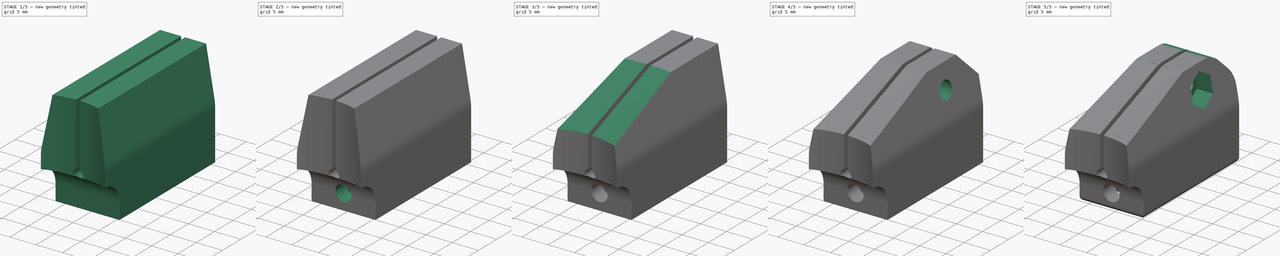
[diagram: build sequence overview — one tinted view per stage of 5, left to right]
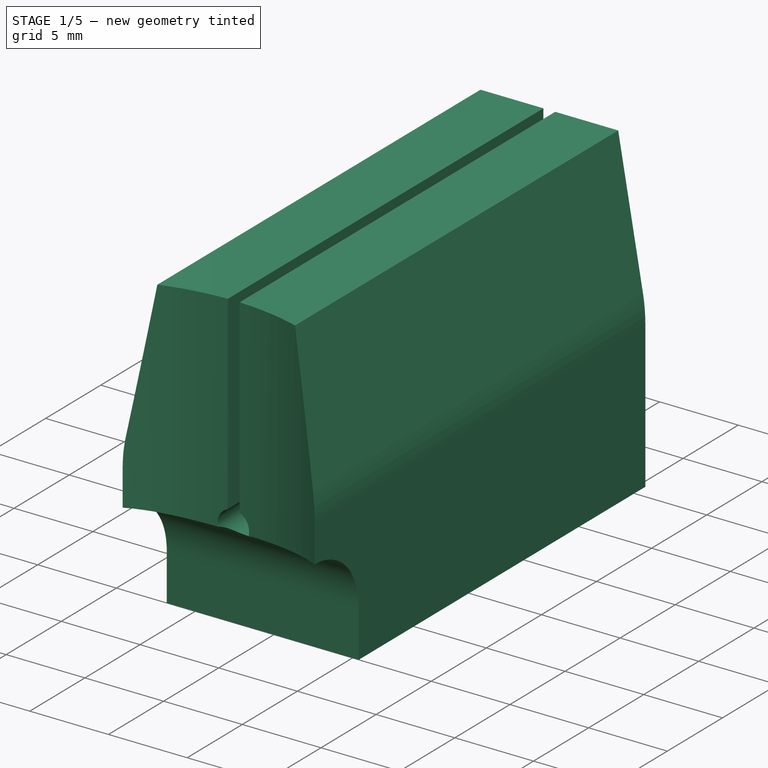
[diagram: stage 1 of 5 — iso view after this stage's code; geometry added in this stage tinted green]
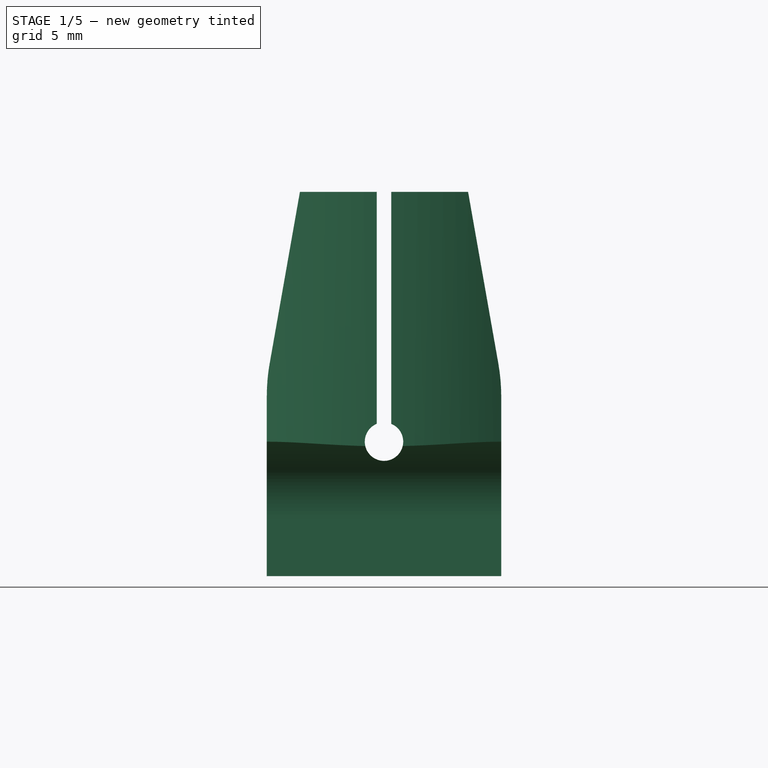
[diagram: stage 1 of 5 — front view after this stage's code; geometry added in this stage tinted green]
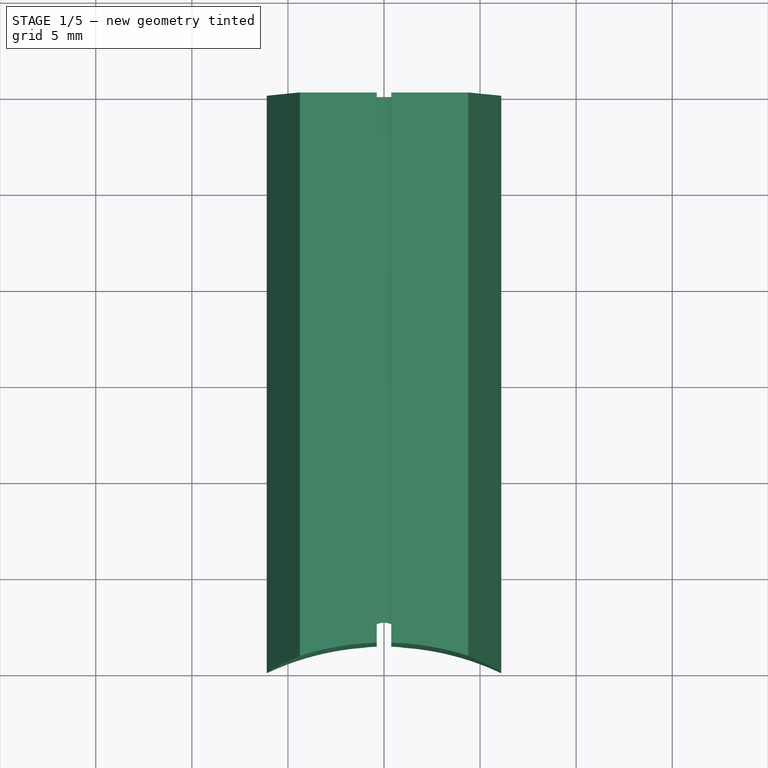
[diagram: stage 1 of 5 — top view after this stage's code; geometry added in this stage tinted green]
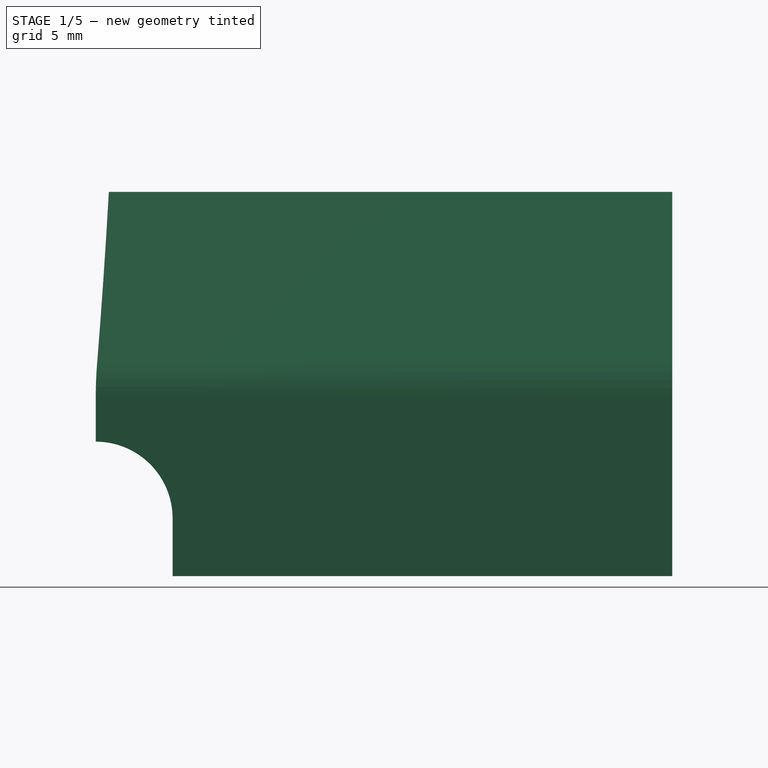
[diagram: stage 1 of 5 — right view after this stage's code; geometry added in this stage tinted green]
FCSTD DOCUMENT  (FreeCAD 0.16RUnknown)
Label: joint-base-i.012
License: All rights reserved
LicenseURL: http://en.wikipedia.org/wiki/All_rights_reserved
objects: Sketcher::SketchObject×10, Part::Fillet×6, PartDesign::Pocket×6, Part::Extrusion×4, Part::Cut×3, Part::Chamfer×2
note: 37 computed .brp shape members not serialized (recipe doc carries the construction recipe); baked Part::Feature solids carry a one-line shape summary decoded from their .brp

FEATURE [Sketcher::SketchObject] Sketch
  Placement = pos=(0,0,0) rot=(-1,0,0;4.71239rad)
  sketch-geometry (13):
    g0: Circle [constr] CenterX=0 CenterY=0 CenterZ=0 NormalX=0 NormalY=0 NormalZ=1 Radius=4.1
    g1: LineSegment [constr] StartX=4.1 StartY=0 StartZ=0 EndX=6.1 EndY=0 EndZ=0
    g2: ArcOfCircle CenterX=0 CenterY=0 CenterZ=0 NormalX=0 NormalY=0 NormalZ=1 Radius=1 StartAngle=1.95519 EndAngle=7.46958
    g3: LineSegment StartX=-6.1 StartY=-7 StartZ=0 EndX=6.1 EndY=-7 EndZ=0
    g4: LineSegment StartX=6.1 StartY=-7 StartZ=0 EndX=6.1 EndY=3.21704 EndZ=0
    g5: LineSegment StartX=6.1 StartY=3.21704 StartZ=0 EndX=4.375 EndY=13 EndZ=0
    g6: LineSegment StartX=4.375 StartY=13 StartZ=0 EndX=0.375 EndY=13 EndZ=0
    g7: LineSegment StartX=0.375 StartY=13 StartZ=0 EndX=0.375 EndY=0.927025 EndZ=0
    g8: LineSegment [constr] StartX=0.375 StartY=0.927025 StartZ=0 EndX=-0.375 EndY=0.927025 EndZ=0
    g9: LineSegment StartX=-0.375 StartY=0.927025 StartZ=0 EndX=-0.375 EndY=13 EndZ=0
    g10: LineSegment StartX=-0.375 StartY=13 StartZ=0 EndX=-4.375 EndY=13 EndZ=0
    g11: LineSegment StartX=-4.375 StartY=13 StartZ=0 EndX=-6.1 EndY=3.21704 EndZ=0
    g12: LineSegment StartX=-6.1 StartY=3.21704 StartZ=0 EndX=-6.1 EndY=-7 EndZ=0
  constraints (38):
    c: Coincident(g0,g-1)
    c: Radius(g0) = 4.1
    c: Horizontal(g1)
    c: PointOnObject(g1,g-1)
    c: PointOnObject(g1,g0)
    c: DistanceX(g1,g1) = 2
    c: Coincident(g0,g2)
    c: Horizontal(g3)
    c: Coincident(g3,g4)
    c: Vertical(g4)
    c: Coincident(g4,g5)
    c: Coincident(g5,g6)
    c: Horizontal(g6)
    c: Coincident(g6,g7)
    c: Vertical(g7)
    c: Coincident(g7,g8)
    c: Horizontal(g8)
    c: Coincident(g8,g9)
    c: Vertical(g9)
    c: Coincident(g9,g10)
    c: Horizontal(g10)
    c: Coincident(g10,g11)
    c: Coincident(g11,g12)
    c: Vertical(g12)
    c: Coincident(g3,g12)
    c: Coincident(g2,g7)
    c: Coincident(g2,g8)
    c: PointOnObject(g1,g4)
    c: Equal(g12,g4)
    c: Equal(g11,g5)
    c: Equal(g10,g6)
    c: Equal(g9,g7)
    c: DistanceY(g3,g-1) = 7
    c: DistanceY(g-1,g9) = 13
    c: DistanceX(g10,g10) = 4
    c: DistanceX(g8,g8) = 0.75
    c: Radius(g2) = 1
    c: Angle(g11,g10) = 1.74533
FEATURE [Part::Extrusion] Extrude
  Base = -> Sketch
  Dir = (0,30,0)
  Solid = true
FEATURE [Part::Fillet] Fillet
  Base = -> Extrude
  Edges = 2 edges r=10: [Edge11,Edge20]
FEATURE [Sketcher::SketchObject] Sketch001
  ExternalGeometry = -> [Fillet]
  Placement = pos=(0,0,-7) rot=(1,0,0;3.14159rad)
  Support = -> Fillet [Face8]
  sketch-geometry (2):
    g0: ArcOfCircle CenterX=0 CenterY=12.9337 CenterZ=0 NormalX=0 NormalY=0 NormalZ=1 Radius=14.3 StartAngle=4.27169 EndAngle=5.15309
    g1: LineSegment StartX=-6.1 StartY=0 StartZ=0 EndX=6.1 EndY=0 EndZ=0
  constraints (6):
    c: Horizontal(g1)
    c: Coincident(g0,g1)
    c: Coincident(g0,g-3)
    c: Coincident(g0,g1)
    c: Coincident(g0,g-3)
    c: Radius(g0) = 14.3
FEATURE [PartDesign::Pocket] Pocket
  Length = 5
  Sketch = -> Sketch001
  Type = 1
FEATURE [Sketcher::SketchObject] Sketch002
  ExternalGeometry = -> [Pocket]
  Placement = pos=(6.1,0,0) rot=(0.57735,0.57735,0.57735;2.0944rad)
  Support = -> Pocket [Face7]
  sketch-geometry (5):
    g0: LineSegment StartX=0 StartY=-7 StartZ=0 EndX=4 EndY=-7 EndZ=0
    g1: LineSegment StartX=4 StartY=-7 StartZ=0 EndX=4 EndY=-4 EndZ=0
    g2: LineSegment StartX=0 StartY=0 StartZ=0 EndX=0 EndY=-7 EndZ=0
    g3: ArcOfCircle CenterX=0 CenterY=-4 CenterZ=0 NormalX=0 NormalY=0 NormalZ=1 Radius=4 StartAngle=0 EndAngle=1.5708
    g4: LineSegment [constr] StartX=0 StartY=-4 StartZ=0 EndX=4 EndY=-4 EndZ=0
  constraints (14):
    c: Coincident(g0,g1)
    c: Coincident(g2,g0)
    c: Horizontal(g0)
    c: Vertical(g1)
    c: Vertical(g2)
    c: Coincident(g2,g3)
    c: Coincident(g2,g-1)
    c: PointOnObject(g3,g2)
    c: Coincident(g1,g3)
    c: Horizontal(g4)
    c: Coincident(g1,g4)
    c: Coincident(g3,g4)
    c: DistanceX(g0,g0) = 4
    c: Coincident(g0,g-3)
FEATURE [PartDesign::Pocket] Pocket001
  Length = 5
  Sketch = -> Sketch002
  Type = 1
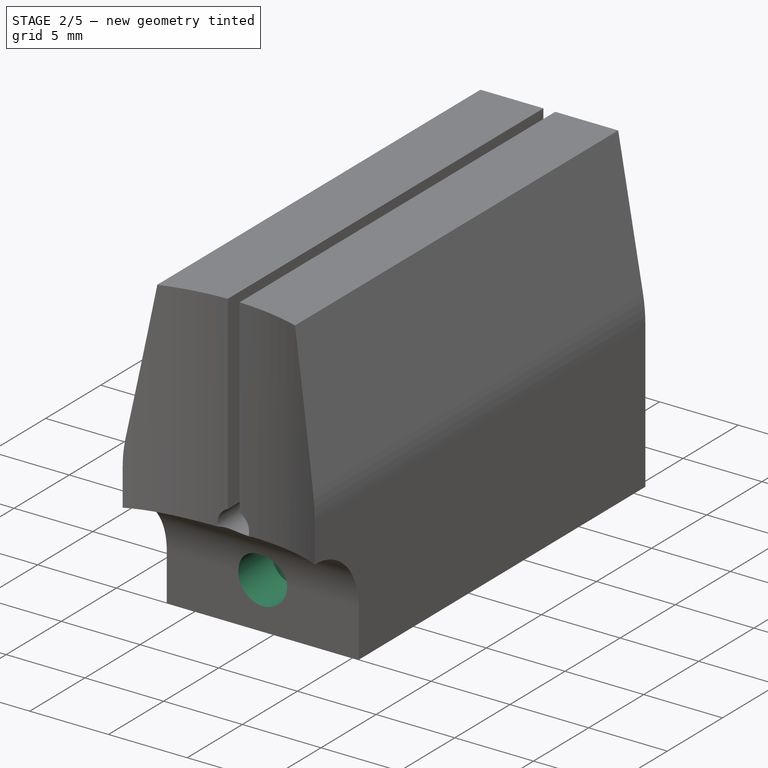
[diagram: stage 2 of 5 — iso view after this stage's code; geometry added in this stage tinted green]
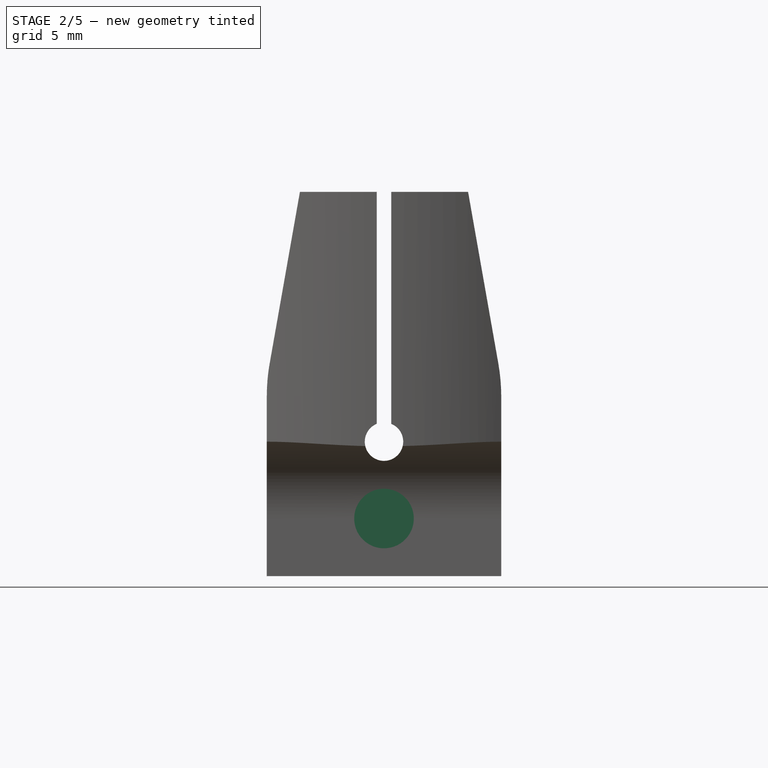
[diagram: stage 2 of 5 — front view after this stage's code; geometry added in this stage tinted green]
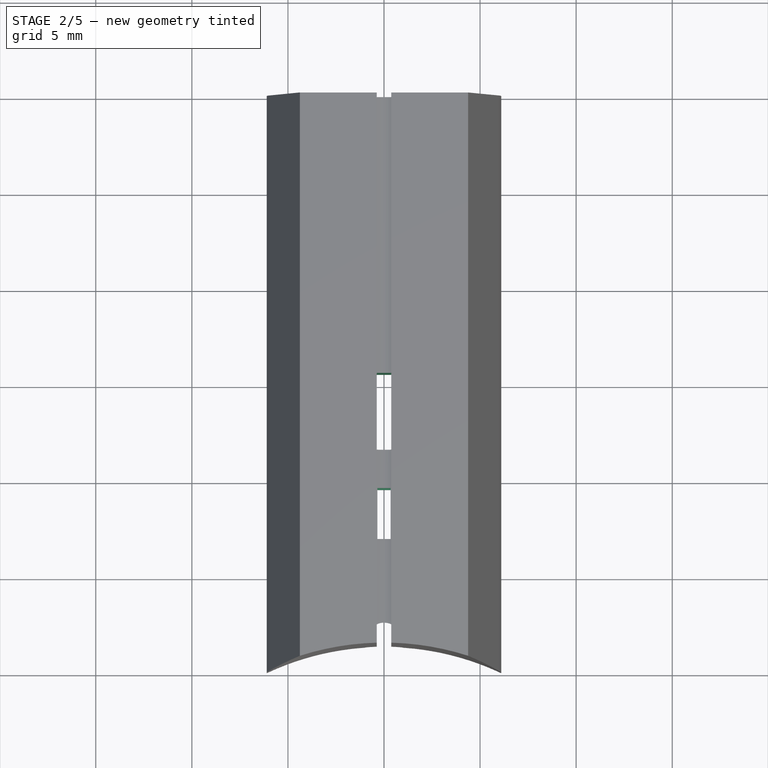
[diagram: stage 2 of 5 — top view after this stage's code; geometry added in this stage tinted green]
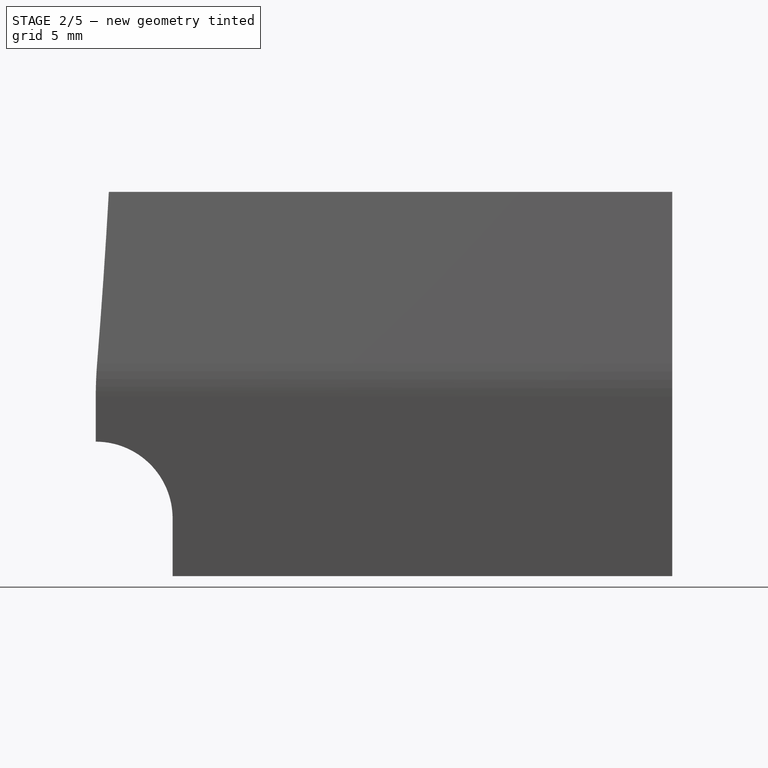
[diagram: stage 2 of 5 — right view after this stage's code; geometry added in this stage tinted green]
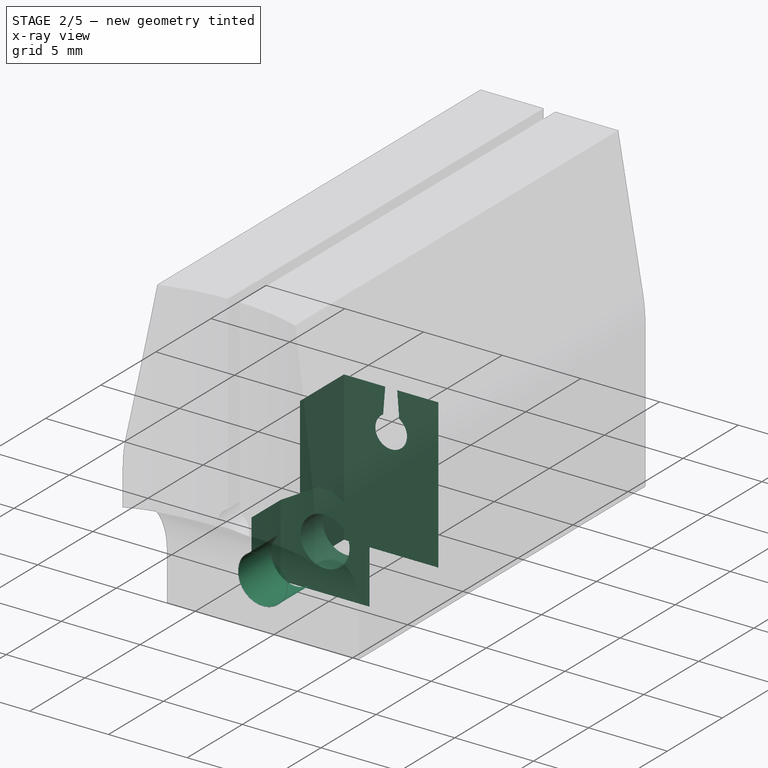
[diagram: stage 2 of 5 — x-ray composite at the iso view; earlier geometry ghosted, this stage's added geometry solid]
FEATURE [Sketcher::SketchObject] Sketch003
  ExternalGeometry = -> [Pocket001]
  Placement = pos=(0,4,0) rot=(1,0,0;1.5708rad)
  Support = -> Pocket001 [Face16]
  sketch-geometry (1):
    g0: Circle CenterX=0 CenterY=-4 CenterZ=0 NormalX=0 NormalY=0 NormalZ=1 Radius=1.55
  constraints (3):
    c: PointOnObject(g0,g-3)
    c: PointOnObject(g0,g-2)
    c: Radius(g0) = 1.55
FEATURE [PartDesign::Pocket] Pocket002
  Length = 16
  Midplane = true
  Sketch = -> Sketch003
  Type = 0
FEATURE [Sketcher::SketchObject] Sketch004
  ExternalGeometry = -> [Pocket002]
  Placement = pos=(0,4,0) rot=(1,0,0;1.5708rad)
  Support = -> Pocket002 [Face16]
  sketch-geometry (6):
    g0: LineSegment StartX=-2.825 StartY=-7 StartZ=0 EndX=-2.825 EndY=-2.36899 EndZ=0
    g1: LineSegment StartX=-2.825 StartY=-2.36899 StartZ=0 EndX=0 EndY=-0.737971 EndZ=0
    g2: LineSegment StartX=0 StartY=-0.737971 StartZ=0 EndX=2.825 EndY=-2.36899 EndZ=0
    g3: LineSegment StartX=2.825 StartY=-2.36899 StartZ=0 EndX=2.825 EndY=-7 EndZ=0
    g4: LineSegment StartX=2.825 StartY=-7 StartZ=0 EndX=-2.825 EndY=-7 EndZ=0
    g5: LineSegment [constr] StartX=0 StartY=-4 StartZ=0 EndX=0 EndY=-0.737971 EndZ=0
  constraints (17):
    c: Vertical(g0)
    c: Coincident(g0,g1)
    c: Coincident(g1,g2)
    c: Coincident(g2,g3)
    c: Vertical(g3)
    c: Coincident(g3,g4)
    c: Horizontal(g4)
    c: Coincident(g0,g4)
    c: Vertical(g5)
    c: Coincident(g1,g5)
    c: Coincident(g5,g-3)
    c: Equal(g0,g3)
    c: DistanceX(g4,g4) = 5.65
    c: Angle(g1,g2) = 2.0944
    c: Equal(g1,g5)
    c: Equal(g5,g2)
    c: PointOnObject(g0,g-4)
FEATURE [Part::Extrusion] Extrude001
  Base = -> Sketch004
  Dir = (0,2.65,0)
  Placement = pos=(0,3,0) rot=(0,0,1;0rad)
  Solid = true
FEATURE [Part::Cut] Cut
  Base = -> Pocket002
  Tool = -> Extrude001
FEATURE [Sketcher::SketchObject] Sketch005
  ExternalGeometry = -> [Cut]
  Placement = pos=(0,0,-7) rot=(1,0,0;3.14159rad)
  Support = -> Cut [Face10]
  sketch-geometry (6):
    g0: LineSegment StartX=-3 StartY=-15.65 StartZ=0 EndX=3 EndY=-15.65 EndZ=0
    g1: LineSegment StartX=3 StartY=-15.65 StartZ=0 EndX=3 EndY=-11.65 EndZ=0
    g2: LineSegment StartX=3 StartY=-11.65 StartZ=0 EndX=-3 EndY=-11.65 EndZ=0
    g3: LineSegment StartX=-3 StartY=-11.65 StartZ=0 EndX=-3 EndY=-15.65 EndZ=0
    g4: LineSegment [constr] StartX=-3 StartY=-11.65 StartZ=0 EndX=-2.825 EndY=-9.65 EndZ=0
    g5: LineSegment [constr] StartX=2.825 StartY=-9.65 StartZ=0 EndX=3 EndY=-11.65 EndZ=0
  constraints (16):
    c: Coincident(g0,g1)
    c: Coincident(g1,g2)
    c: Coincident(g2,g3)
    c: Coincident(g3,g0)
    c: Horizontal(g0)
    c: Horizontal(g2)
    c: Vertical(g1)
    c: Vertical(g3)
    c: Coincident(g4,g-3)
    c: Coincident(g2,g4)
    c: Coincident(g1,g5)
    c: Coincident(g5,g-3)
    c: Equal(g5,g4)
    c: DistanceY(g5,g5) = 2
    c: DistanceY(g1,g1) = 4
    c: DistanceX(g0,g0) = 6
FEATURE [PartDesign::Pocket] Pocket003
  Length = 9.5
  Sketch = -> Sketch005
  Type = 0
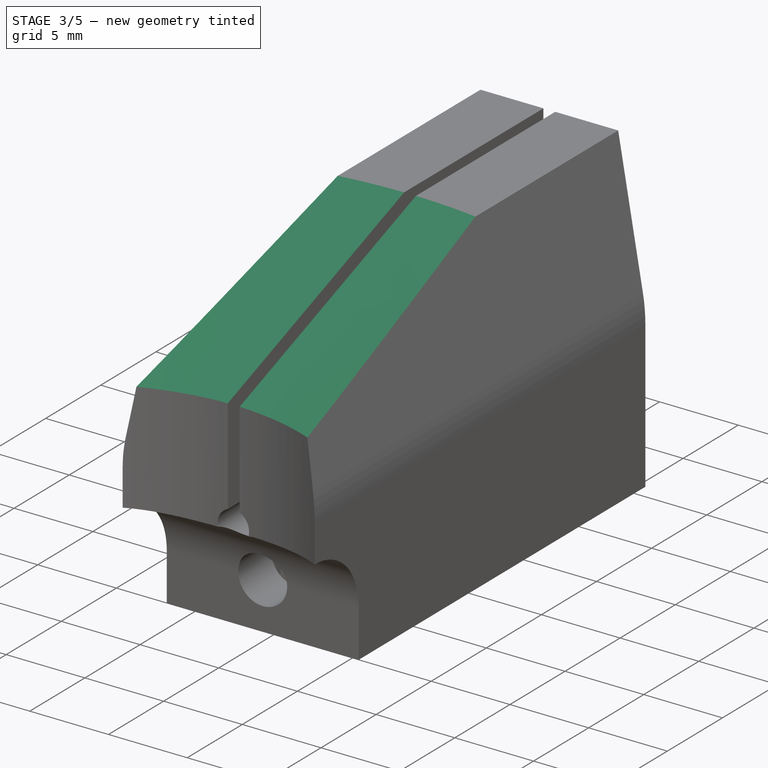
[diagram: stage 3 of 5 — iso view after this stage's code; geometry added in this stage tinted green]
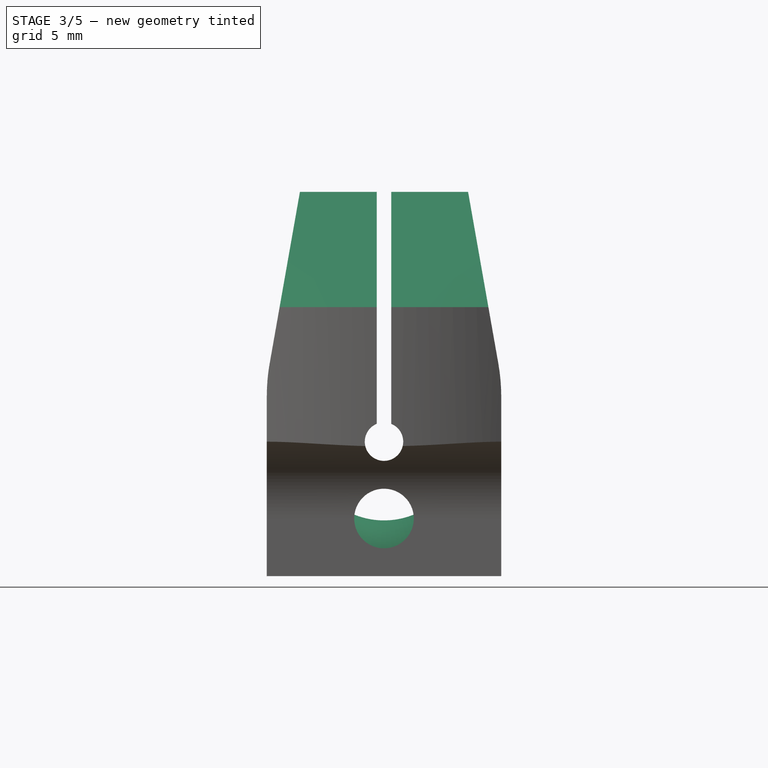
[diagram: stage 3 of 5 — front view after this stage's code; geometry added in this stage tinted green]
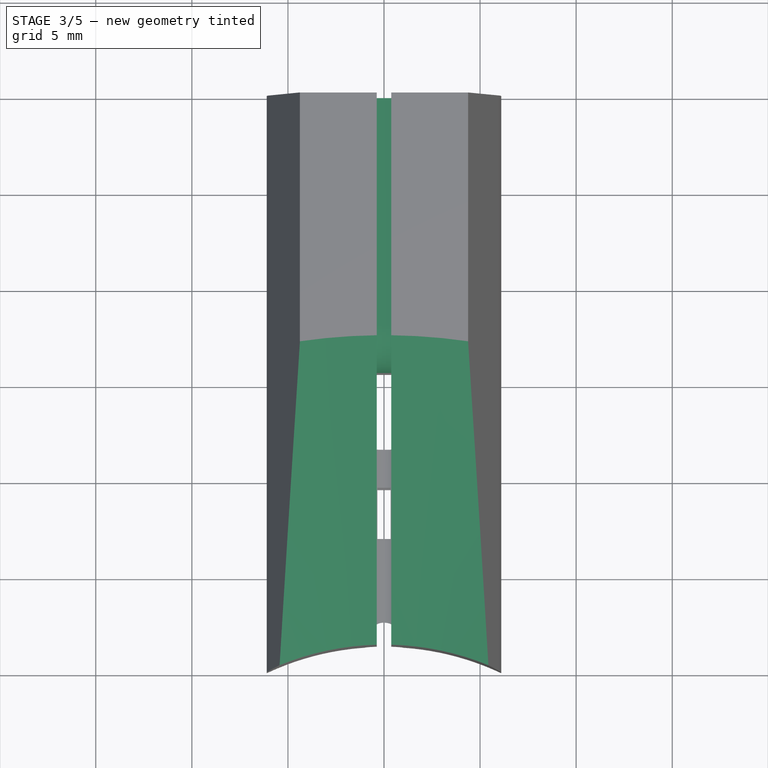
[diagram: stage 3 of 5 — top view after this stage's code; geometry added in this stage tinted green]
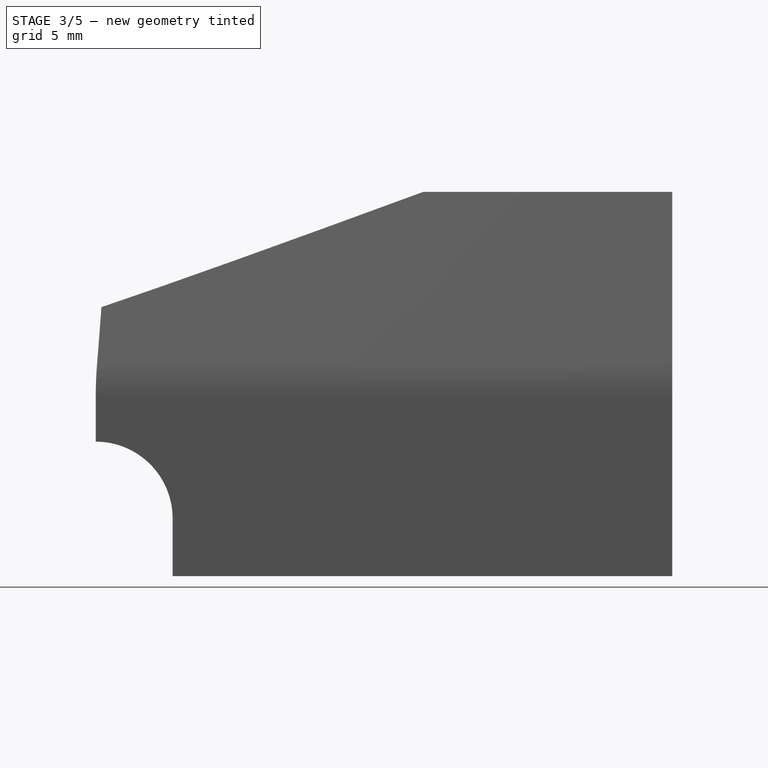
[diagram: stage 3 of 5 — right view after this stage's code; geometry added in this stage tinted green]
FEATURE [Sketcher::SketchObject] Sketch006
  Placement = pos=(0,30,0) rot=(0,0.707107,0.707107;3.14159rad)
  Support = -> Pocket003 [Face4]
  sketch-geometry (1):
    g0: Circle CenterX=0 CenterY=0 CenterZ=0 NormalX=0 NormalY=0 NormalZ=1 Radius=4.1
  constraints (2):
    c: Coincident(g0,g-1)
    c: Radius(g0) = 4.1
FEATURE [PartDesign::Pocket] Pocket004
  Length = 0
  Sketch = -> Sketch006
  Type = 3
  UpToFace = -> Pocket003 [Face20]
FEATURE [Part::Fillet] Fillet001
  Base = -> Pocket004
  Edges = 2 edges r=2.5: [Edge83,Edge102]
FEATURE [Part::Fillet] Fillet002
  Base = -> Fillet001
  Edges = 4 edges r=1: [Edge1,Edge2,Edge5,Edge7]
FEATURE [Part::Fillet] Fillet003
  Base = -> Fillet002
  Edges = 1 edges r=2.5: [Edge64]
FEATURE [Part::Chamfer] Chamfer
  Base = -> Fillet003
  Edges = 2 edges: [Edge121 r1=6 r2=16,Edge125 r1=6 r2=16]
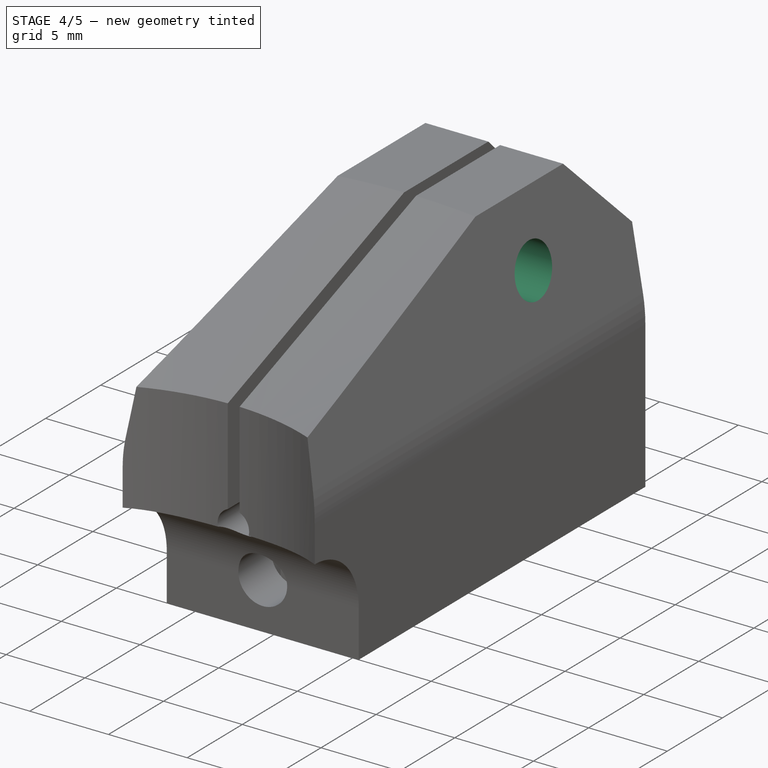
[diagram: stage 4 of 5 — iso view after this stage's code; geometry added in this stage tinted green]
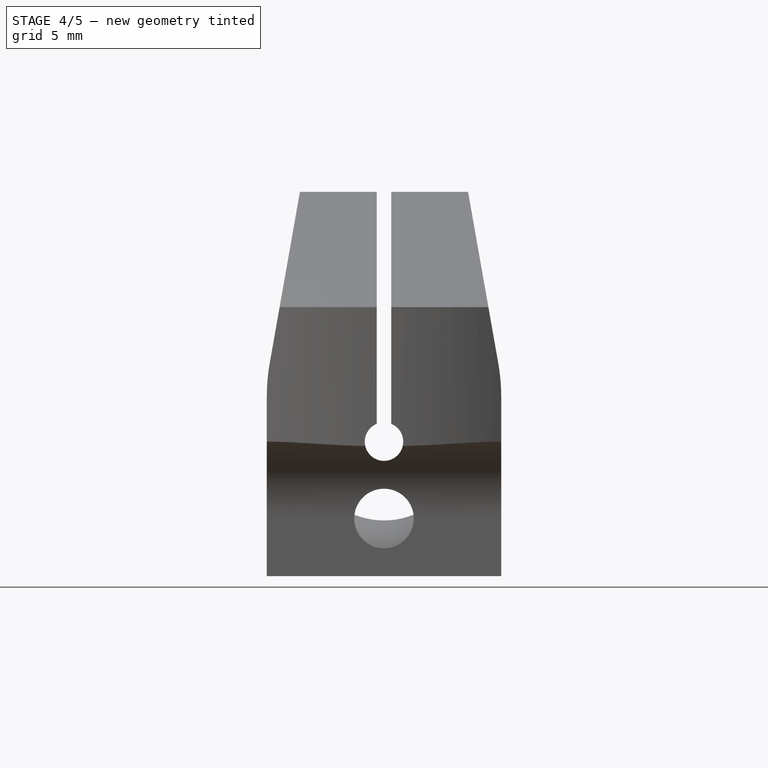
[diagram: stage 4 of 5 — front view after this stage's code; geometry added in this stage tinted green]
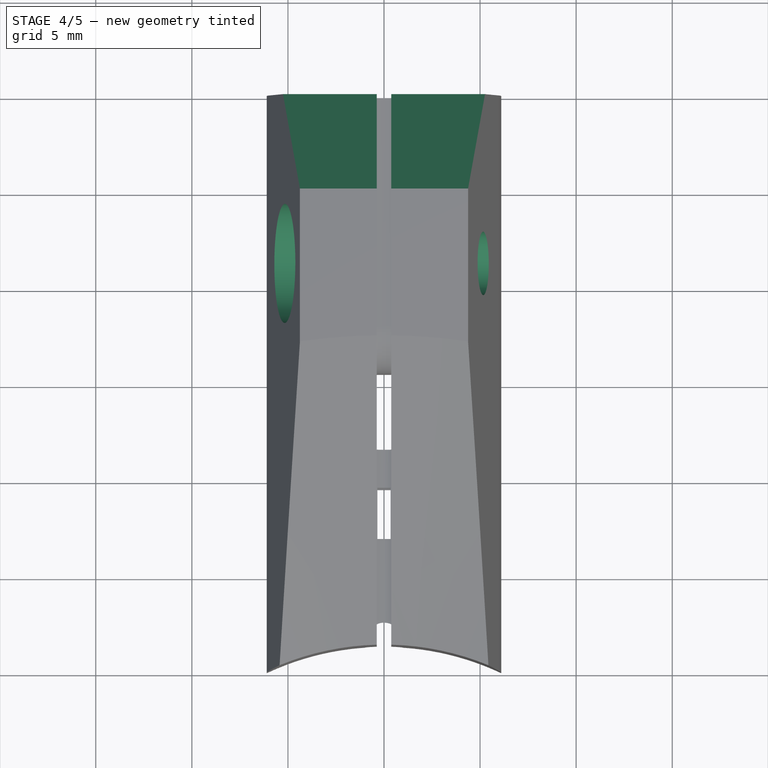
[diagram: stage 4 of 5 — top view after this stage's code; geometry added in this stage tinted green]
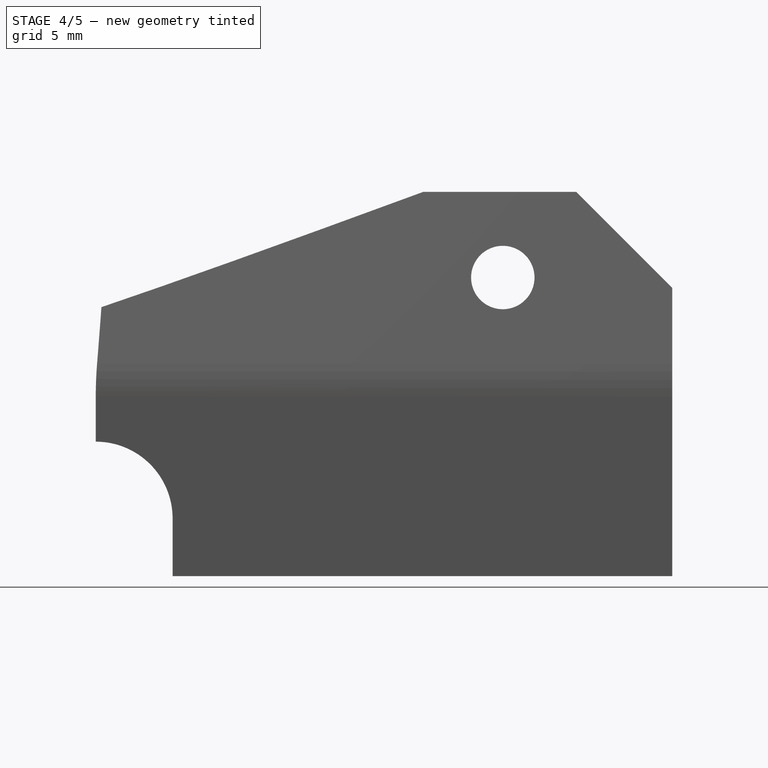
[diagram: stage 4 of 5 — right view after this stage's code; geometry added in this stage tinted green]
FEATURE [Part::Chamfer] Chamfer001
  Base = -> Chamfer
  Edges = 2 edges r=5: [Edge28,Edge43]
FEATURE [Sketcher::SketchObject] Sketch007
  ExternalGeometry = -> [Chamfer001]
  Placement = pos=(-0.375,0,0) rot=(0.57735,0.57735,0.57735;2.0944rad)
  Support = -> Chamfer001 [Face19]
  sketch-geometry (5):
    g0: LineSegment [constr] StartX=17.364 StartY=13 StartZ=0 EndX=21.182 EndY=13 EndZ=0
    g1: LineSegment [constr] StartX=21.182 StartY=13 StartZ=0 EndX=25 EndY=13 EndZ=0
    g2: LineSegment [constr] StartX=21.182 StartY=13 StartZ=0 EndX=21.182 EndY=8.54141 EndZ=0
    g3: LineSegment [constr] StartX=21.182 StartY=8.54141 StartZ=0 EndX=21.182 EndY=4.08281 EndZ=0
    g4: Circle CenterX=21.182 CenterY=8.54141 CenterZ=0 NormalX=0 NormalY=0 NormalZ=1 Radius=1.65
  constraints (14):
    c: Horizontal(g0)
    c: Coincident(g0,g1)
    c: Horizontal(g1)
    c: Vertical(g2)
    c: Coincident(g2,g3)
    c: Vertical(g3)
    c: Coincident(g0,g2)
    c: Equal(g0,g1)
    c: Equal(g2,g3)
    c: Coincident(g0,g-3)
    c: Coincident(g1,g-3)
    c: PointOnObject(g3,g-4)
    c: Coincident(g2,g4)
    c: Radius(g4) = 1.65
FEATURE [PartDesign::Pocket] Pocket005
  Length = 5
  Midplane = true
  Sketch = -> Sketch007
  Type = 1
FEATURE [Sketcher::SketchObject] Sketch008
  ExternalGeometry = -> [Pocket005]
  Placement = pos=(-0.375,0,0) rot=(0.57735,0.57735,0.57735;2.0944rad)
  Support = -> Pocket005 [Face20]
  sketch-geometry (1):
    g0: Circle CenterX=21.182 CenterY=8.54141 CenterZ=0 NormalX=0 NormalY=0 NormalZ=1 Radius=3.1
  constraints (2):
    c: Coincident(g0,g-3)
    c: Radius(g0) = 3.1
FEATURE [Sketcher::SketchObject] Sketch009
  ExternalGeometry = -> [Pocket005]
  Placement = pos=(0.375,0,0) rot=(0.57735,-0.57735,-0.57735;2.0944rad)
  Support = -> Pocket005 [Face1]
  sketch-geometry (7):
    g0: LineSegment StartX=-21.182 StartY=11.6414 StartZ=0 EndX=-23.8667 EndY=10.0914 EndZ=0
    g1: LineSegment StartX=-23.8667 StartY=10.0914 StartZ=0 EndX=-23.8667 EndY=6.99141 EndZ=0
    g2: LineSegment StartX=-23.8667 StartY=6.99141 StartZ=0 EndX=-21.182 EndY=5.44141 EndZ=0
    g3: LineSegment StartX=-21.182 StartY=5.44141 StartZ=0 EndX=-18.4973 EndY=6.99141 EndZ=0
    g4: LineSegment StartX=-18.4973 StartY=6.99141 StartZ=0 EndX=-18.4973 EndY=10.0914 EndZ=0
    g5: LineSegment StartX=-18.4973 StartY=10.0914 StartZ=0 EndX=-21.182 EndY=11.6414 EndZ=0
    g6: Circle [constr] CenterX=-21.182 CenterY=8.54141 CenterZ=0 NormalX=0 NormalY=0 NormalZ=1 Radius=3.1
  constraints (16):
    c: Coincident(g0,g1)
    c: Coincident(g1,g2)
    c: Coincident(g2,g3)
    c: Coincident(g3,g4)
    c: Coincident(g4,g5)
    c: Coincident(g5,g0)
    c: Equal(g0, g1-g5) x5
    c: PointOnObject(g0,g6)
    c: PointOnObject(g1,g6)
    c: PointOnObject(g2,g6)
    c: PointOnObject(g3,g6)
    c: PointOnObject(g4,g6)
    c: PointOnObject(g5,g6)
    c: Vertical(g4)
    c: Coincident(g6,g-3)
    c: Radius(g6) = 3.1
FEATURE [Part::Extrusion] Extrude002
  Base = -> Sketch008
  Dir = (-10,0,0)
  Placement = pos=(-2,0,0) rot=(0,0,1;0rad)
  Solid = true
FEATURE [Part::Cut] Cut001
  Base = -> Pocket005
  Tool = -> Extrude002
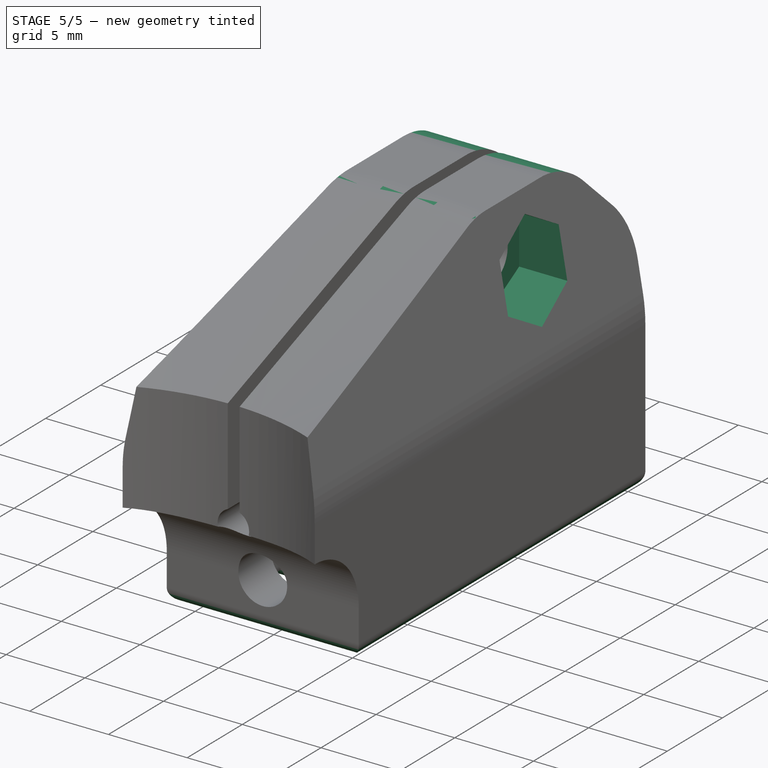
[diagram: stage 5 of 5 — iso view after this stage's code; geometry added in this stage tinted green]
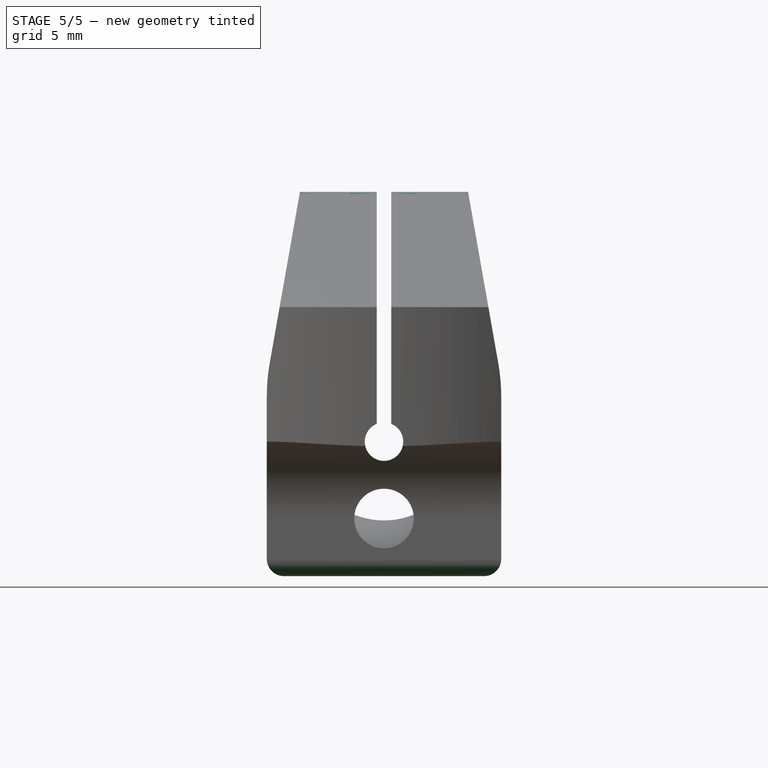
[diagram: stage 5 of 5 — front view after this stage's code; geometry added in this stage tinted green]
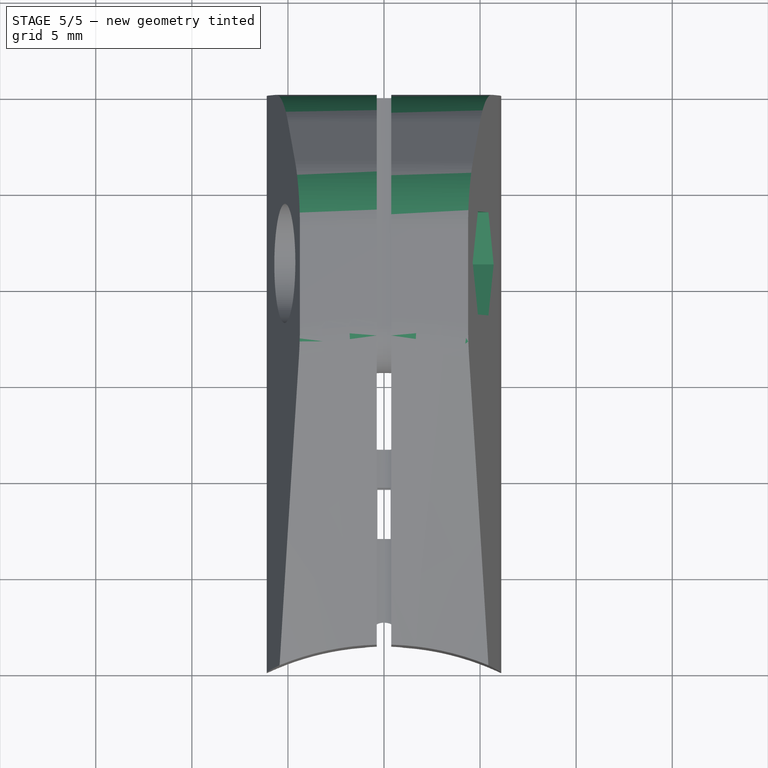
[diagram: stage 5 of 5 — top view after this stage's code; geometry added in this stage tinted green]
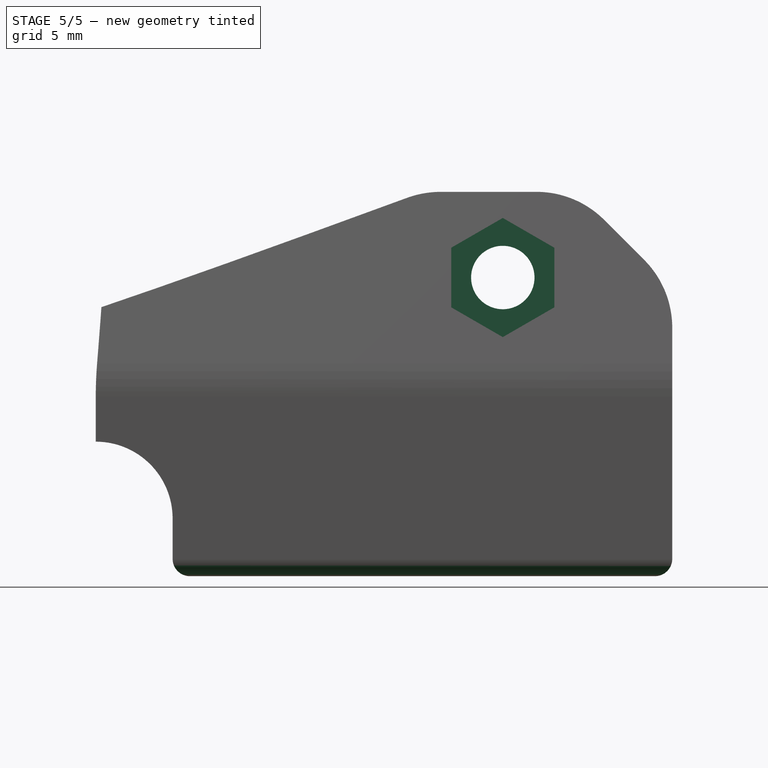
[diagram: stage 5 of 5 — right view after this stage's code; geometry added in this stage tinted green]
FEATURE [Part::Extrusion] Extrude003
  Base = -> Sketch009
  Dir = (10,0,0)
  Placement = pos=(2,0,0) rot=(0,0,1;0rad)
  Solid = true
FEATURE [Part::Cut] Cut002
  Base = -> Cut001
  Tool = -> Extrude003
FEATURE [Part::Fillet] Fillet004
  Base = -> Cut002
  Edges = 6 edges r=5: [Edge13,Edge14,Edge17,Edge29,Edge106,Edge161]
FEATURE [Part::Fillet] Fillet005
  Base = -> Fillet004
  Edges = 14 edges r=0.9: [Edge47,Edge54,Edge85,Edge112,Edge117,Edge123,Edge124,Edge125,Edge126,Edge127,Edge128,Edge129,Edge130,Edge131]
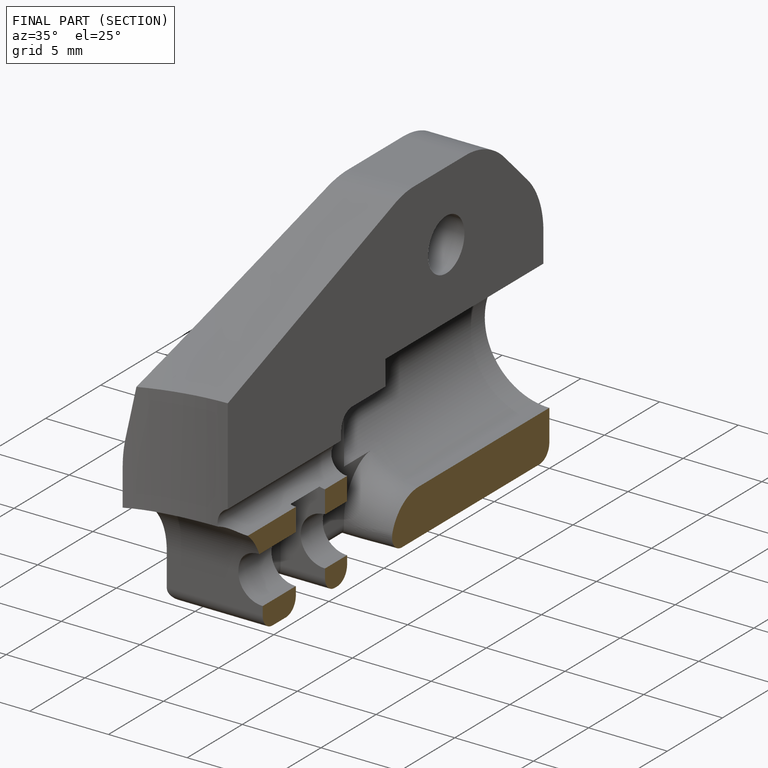
[diagram: finished part — half-section view (interior)]
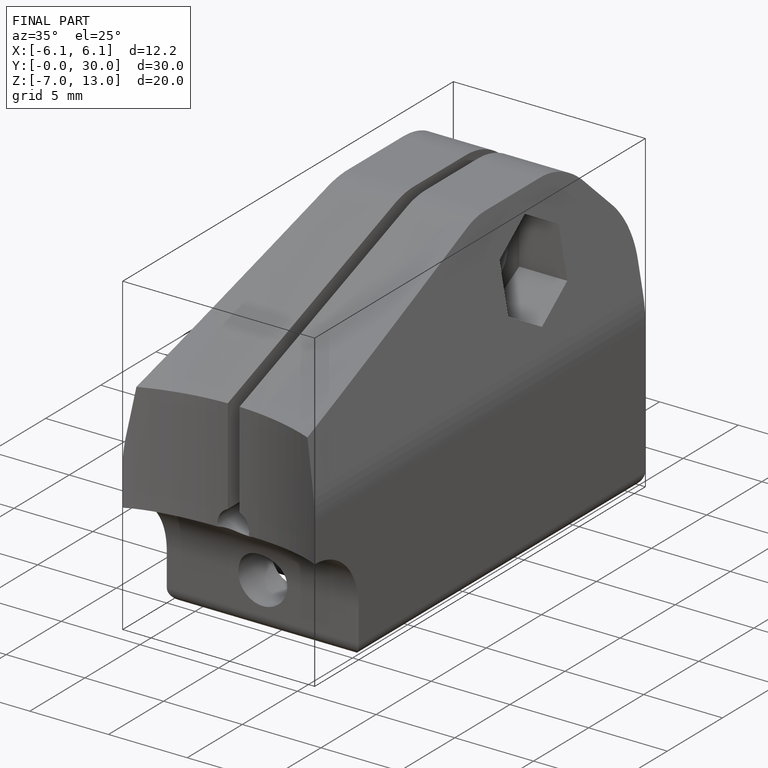
[diagram: finished part — iso view with bounding-box wireframe]
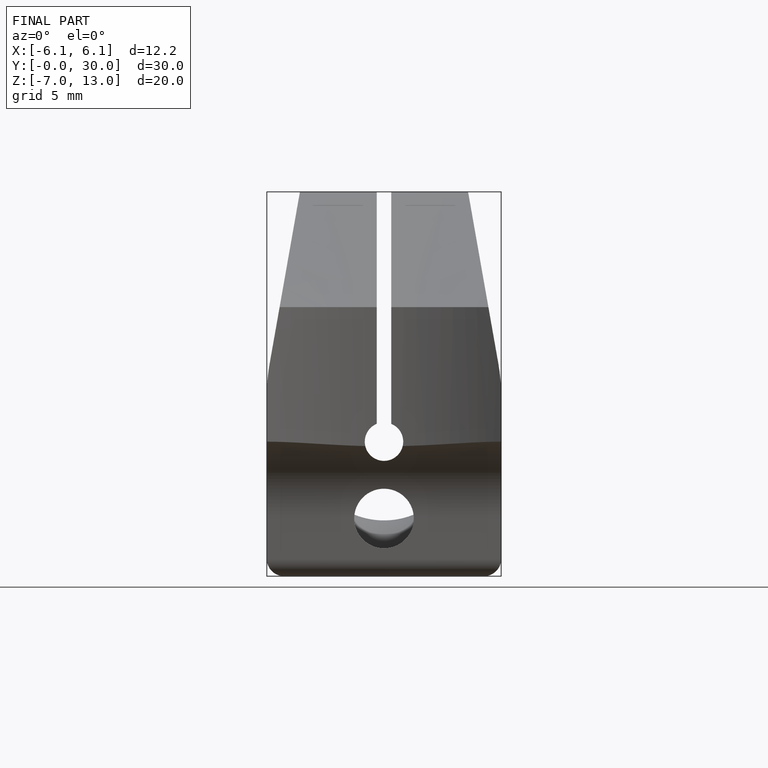
[diagram: finished part — front view with bounding-box wireframe]
